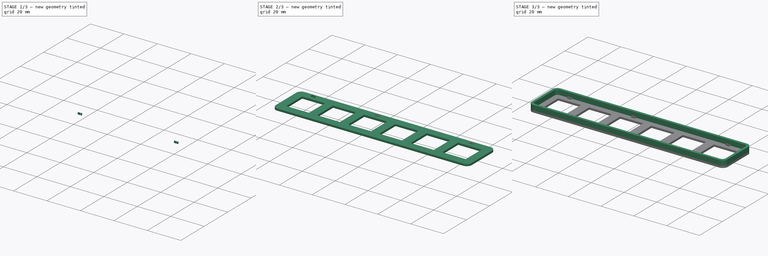
[diagram: build sequence overview — one tinted view per stage of 3, left to right]
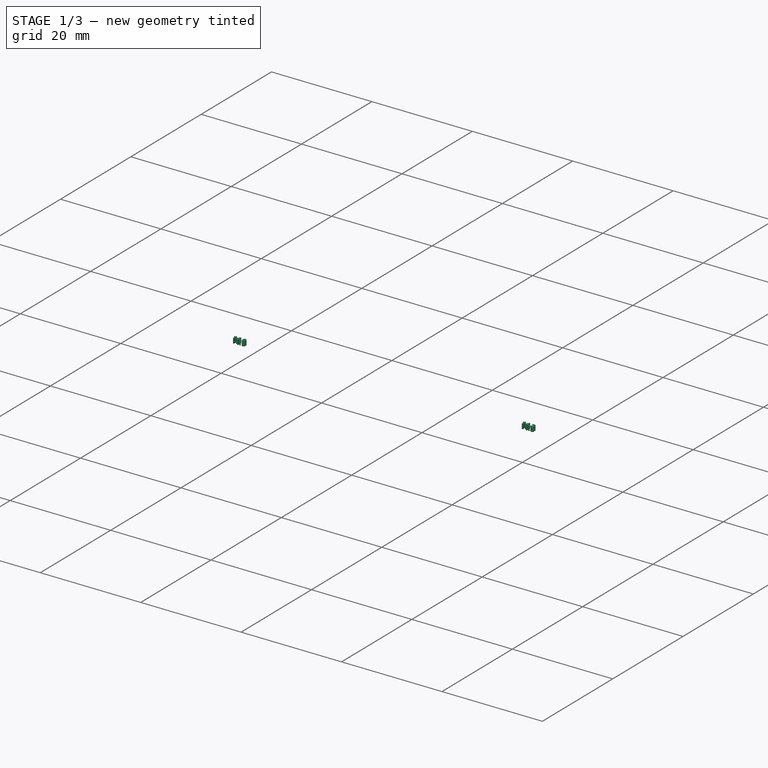
[diagram: stage 1 of 3 — iso view after this stage's code; geometry added in this stage tinted green]
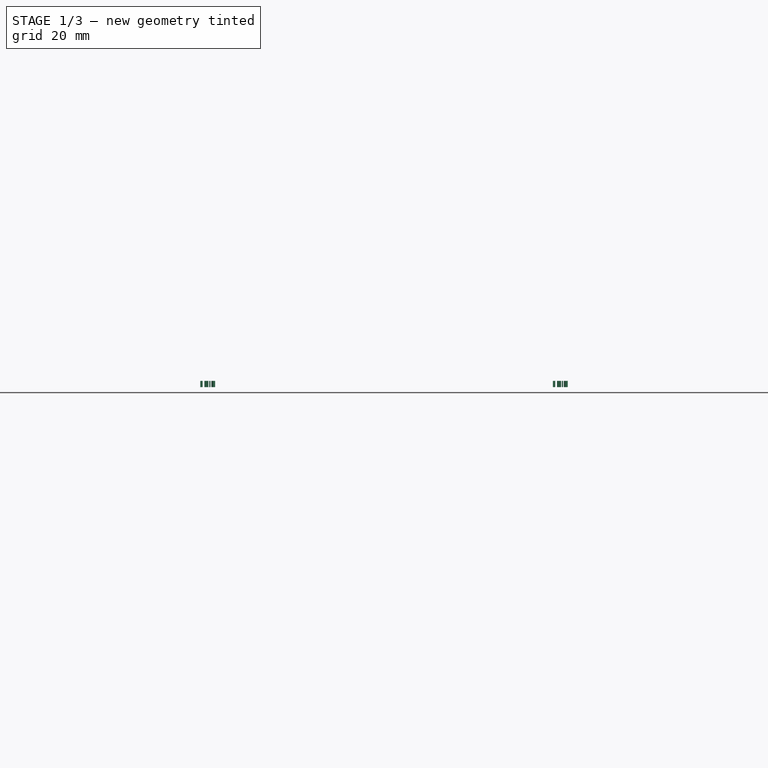
[diagram: stage 1 of 3 — front view after this stage's code; geometry added in this stage tinted green]
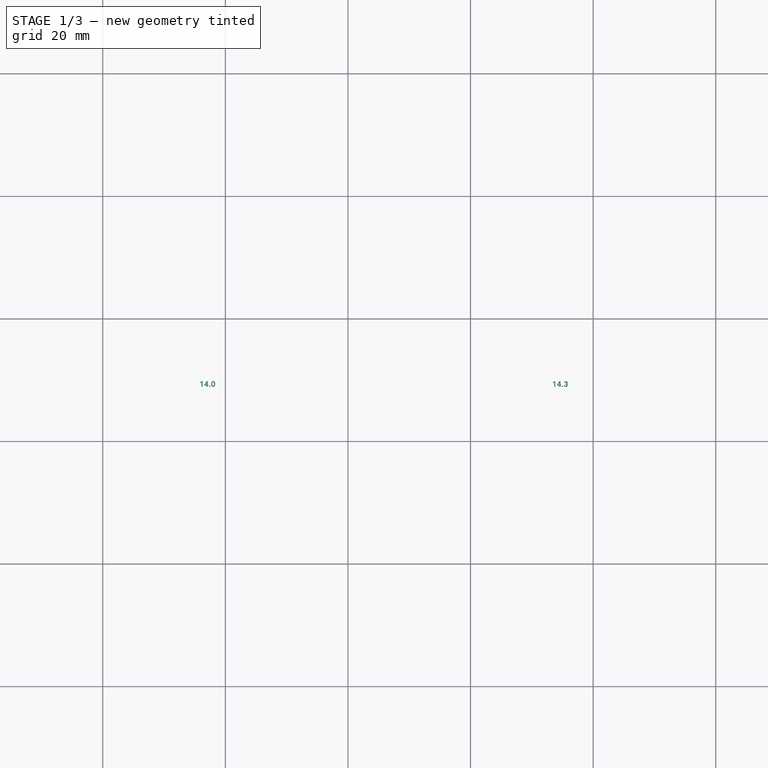
[diagram: stage 1 of 3 — top view after this stage's code; geometry added in this stage tinted green]
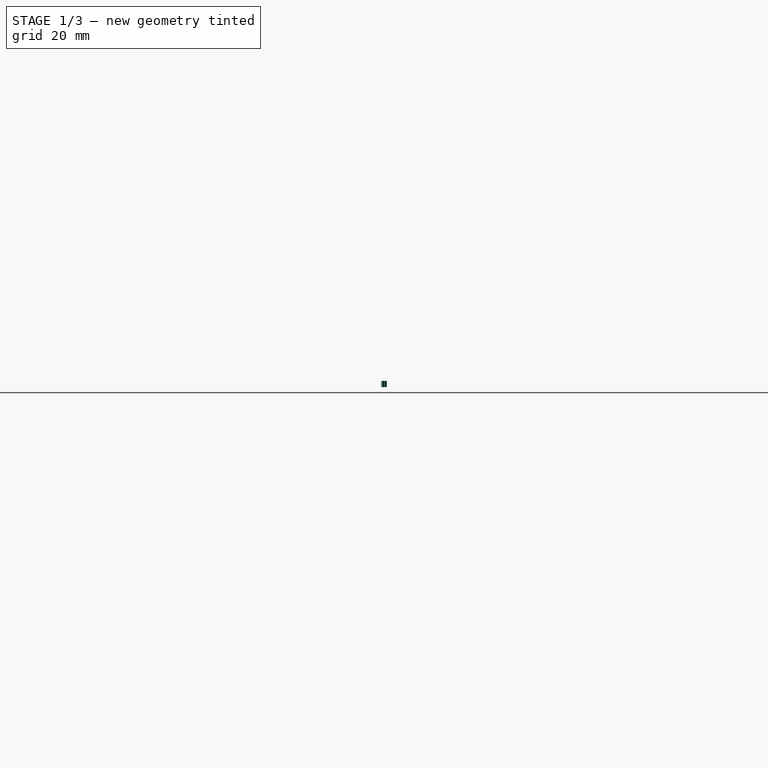
[diagram: stage 1 of 3 — right view after this stage's code; geometry added in this stage tinted green]
FCSTD DOCUMENT  (FreeCAD 0.19R)
Label: keyboard-topplate-tester
License: All rights reserved
LicenseURL: http://en.wikipedia.org/wiki/All_rights_reserved
objects: Part::Part2DObjectPython×3, Part::Extrusion×3, Sketcher::SketchObject×2, PartDesign::Pad×2, PartDesign::Body×1, Part::MultiFuse×1
note: 14 computed .brp shape members not serialized (recipe doc carries the construction recipe); baked Part::Feature solids carry a one-line shape summary decoded from their .brp

FEATURE [Part::Part2DObjectPython] ShapeString001  label="text14.3-sk"  # Draft 2D object (typed FeaturePython)
  FontFile = <userpath>/libraries/font/Roboto-Bold.ttf
  Placement = pos=(93.33,8.91,1.2) rot=(0,0,1;0rad)
  Size = 1
  String = 14.3
  Tracking = 0
FEATURE [Part::Extrusion] Extrude001  label="text14.3-pad"
  Base = -> ShapeString001
  Dir = (0,0,1)
  DirMode = 2
  FaceMakerClass = Part::FaceMakerBullseye
  LengthFwd = 1
  LengthRev = 0
  Solid = false
  Symmetric = false
FEATURE [Part::Part2DObjectPython] ShapeString002  label="text14.0-sk"  # Draft 2D object (typed FeaturePython)
  FontFile = <userpath>/libraries/font/Roboto-Bold.ttf
  Placement = pos=(35.79,8.92,1.2) rot=(0,0,1;0rad)
  Size = 1
  String = 14
  Tracking = 0
FEATURE [Part::Extrusion] Extrude002  label="text14.0-pad"
  Base = -> ShapeString002
  Dir = (0,0,1)
  DirMode = 2
  FaceMakerClass = Part::FaceMakerBullseye
  LengthFwd = 1
  LengthRev = 0
  Solid = false
  Symmetric = false
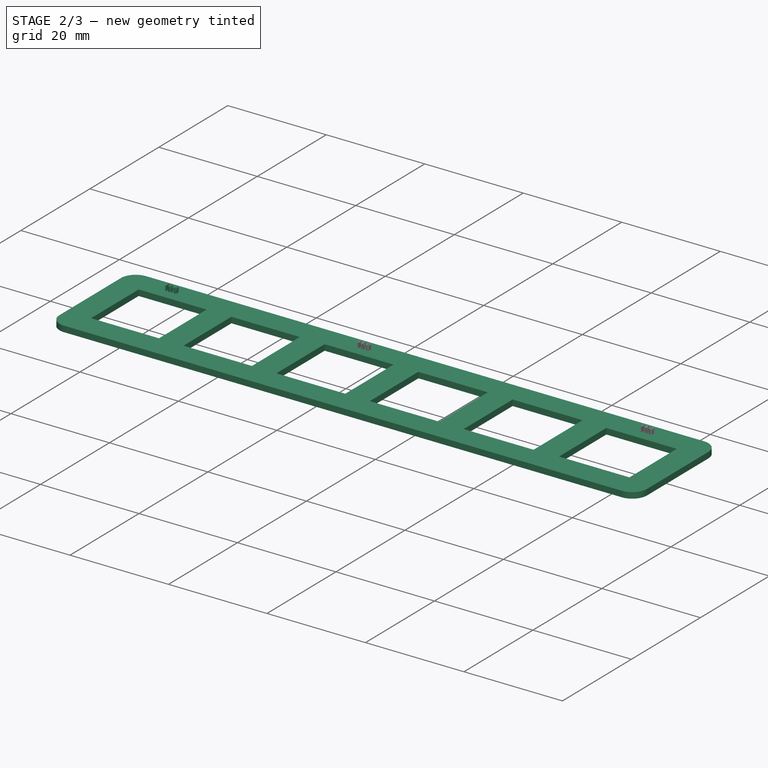
[diagram: stage 2 of 3 — iso view after this stage's code; geometry added in this stage tinted green]
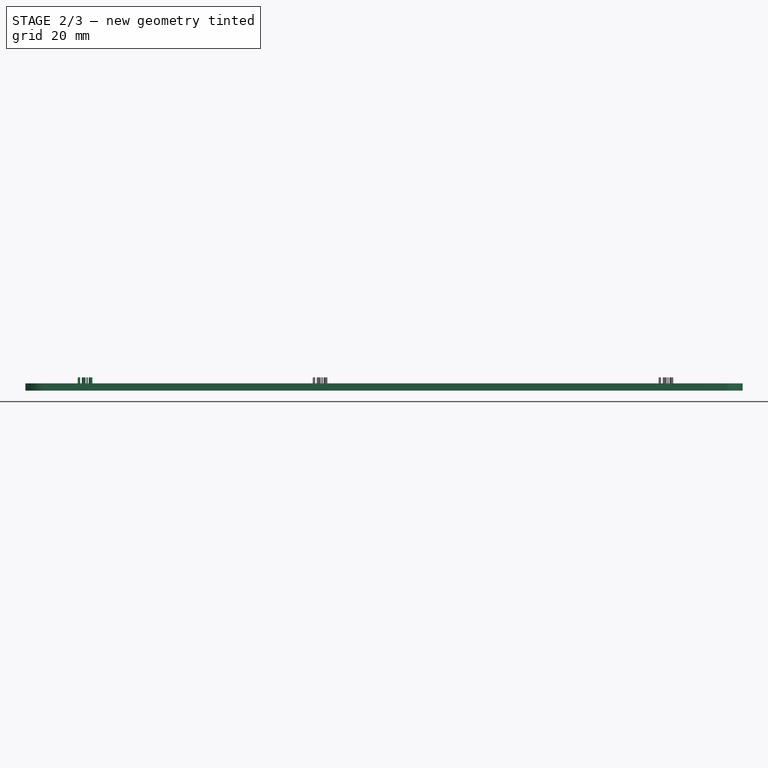
[diagram: stage 2 of 3 — front view after this stage's code; geometry added in this stage tinted green]
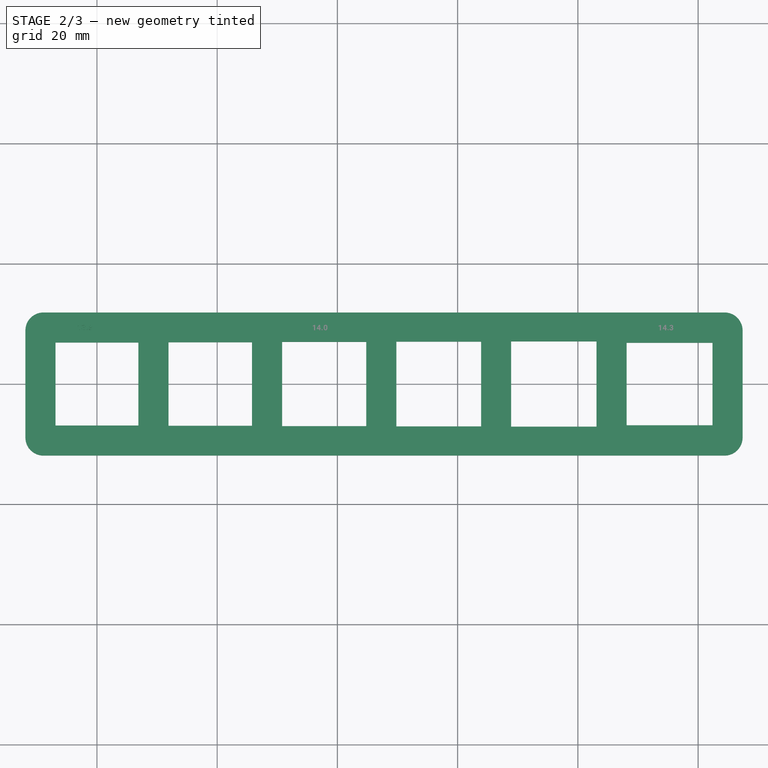
[diagram: stage 2 of 3 — top view after this stage's code; geometry added in this stage tinted green]
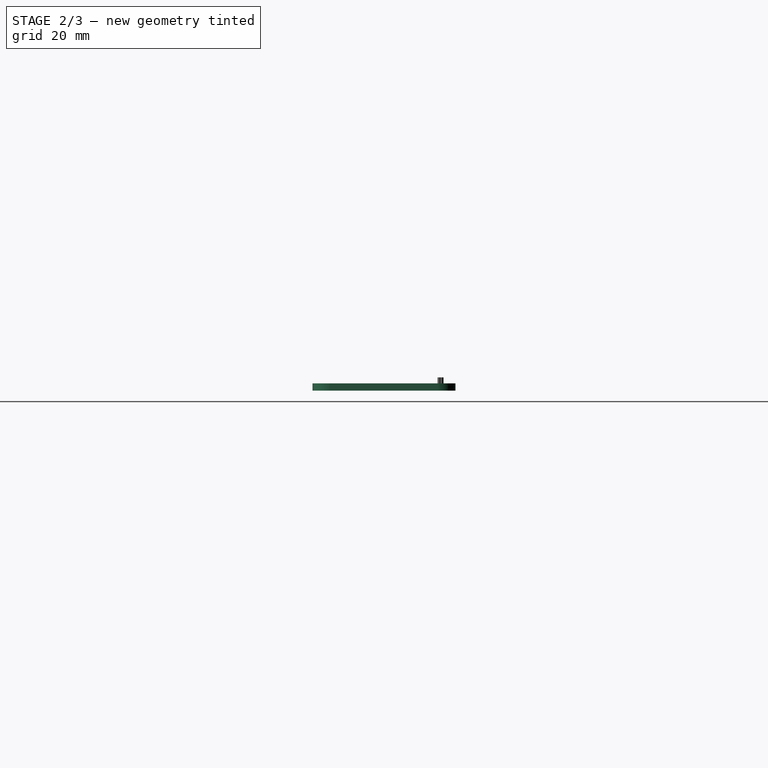
[diagram: stage 2 of 3 — right view after this stage's code; geometry added in this stage tinted green]
FEATURE [Sketcher::SketchObject] Sketch  label="top-sk"
  FullyConstrained = true
  MapMode = 5
  Support = -> [XY_Plane]
  sketch-geometry (32):
    g0: LineSegment StartX=-8.9 StartY=11.9 StartZ=0 EndX=104.4 EndY=11.9 EndZ=0
    g1: LineSegment StartX=107.4 StartY=8.9 StartZ=0 EndX=107.4 EndY=-8.9 EndZ=0
    g2: LineSegment StartX=104.4 StartY=-11.9 StartZ=0 EndX=-8.9 EndY=-11.9 EndZ=0
    g3: LineSegment StartX=-11.9 StartY=-8.9 StartZ=0 EndX=-11.9 EndY=8.9 EndZ=0
    g4: LineSegment StartX=-6.9 StartY=6.9 StartZ=0 EndX=6.9 EndY=6.9 EndZ=0
    g5: LineSegment StartX=6.9 StartY=6.9 StartZ=0 EndX=6.9 EndY=-6.9 EndZ=0
    g6: LineSegment StartX=6.9 StartY=-6.9 StartZ=0 EndX=-6.9 EndY=-6.9 EndZ=0
    g7: LineSegment StartX=-6.9 StartY=-6.9 StartZ=0 EndX=-6.9 EndY=6.9 EndZ=0
    g8: LineSegment StartX=68.9 StartY=7.1 StartZ=0 EndX=83.1 EndY=7.1 EndZ=0
    g9: LineSegment StartX=83.1 StartY=7.1 StartZ=0 EndX=83.1 EndY=-7.1 EndZ=0
    g10: LineSegment StartX=83.1 StartY=-7.1 StartZ=0 EndX=68.9 EndY=-7.1 EndZ=0
    g11: LineSegment StartX=68.9 StartY=-7.1 StartZ=0 EndX=68.9 EndY=7.1 EndZ=0
    g12: LineSegment StartX=11.9 StartY=6.95 StartZ=0 EndX=25.8 EndY=6.95 EndZ=0
    g13: LineSegment StartX=25.8 StartY=6.95 StartZ=0 EndX=25.8 EndY=-6.95 EndZ=0
    g14: LineSegment StartX=25.8 StartY=-6.95 StartZ=0 EndX=11.9 EndY=-6.95 EndZ=0
    g15: LineSegment StartX=11.9 StartY=-6.95 StartZ=0 EndX=11.9 EndY=6.95 EndZ=0
    g16: LineSegment StartX=30.8 StartY=7 StartZ=0 EndX=44.8 EndY=7 EndZ=0
    g17: LineSegment StartX=44.8 StartY=7 StartZ=0 EndX=44.8 EndY=-7 EndZ=0
    g18: LineSegment StartX=44.8 StartY=-7 StartZ=0 EndX=30.8 EndY=-7 EndZ=0
    g19: LineSegment StartX=30.8 StartY=-7 StartZ=0 EndX=30.8 EndY=7 EndZ=0
    g20: LineSegment StartX=49.8 StartY=7.05 StartZ=0 EndX=63.9 EndY=7.05 EndZ=0
    g21: LineSegment StartX=63.9 StartY=7.05 StartZ=0 EndX=63.9 EndY=-7.05 EndZ=0
    g22: LineSegment StartX=63.9 StartY=-7.05 StartZ=0 EndX=49.8 EndY=-7.05 EndZ=0
    g23: LineSegment StartX=49.8 StartY=-7.05 StartZ=0 EndX=49.8 EndY=7.05 EndZ=0
    g24: ArcOfCircle CenterX=-8.9 CenterY=-8.9 CenterZ=0 NormalX=0 NormalY=0 NormalZ=1 AngleXU=0 Radius=3 StartAngle=3.14159 EndAngle=4.71239
    g25: ArcOfCircle CenterX=-8.9 CenterY=8.9 CenterZ=0 NormalX=0 NormalY=0 NormalZ=1 AngleXU=0 Radius=3 StartAngle=1.5708 EndAngle=3.14159
    g26: ArcOfCircle CenterX=104.4 CenterY=-8.9 CenterZ=0 NormalX=0 NormalY=0 NormalZ=1 AngleXU=0 Radius=3 StartAngle=4.71239 EndAngle=6.28319
    g27: ArcOfCircle CenterX=104.4 CenterY=8.9 CenterZ=0 NormalX=0 NormalY=0 NormalZ=1 AngleXU=0 Radius=3 StartAngle=0 EndAngle=1.5708
    g28: LineSegment StartX=88.1 StartY=6.86 StartZ=0 EndX=102.4 EndY=6.86 EndZ=0
    g29: LineSegment StartX=102.4 StartY=6.86 StartZ=0 EndX=102.4 EndY=-6.86 EndZ=0
    g30: LineSegment StartX=102.4 StartY=-6.86 StartZ=0 EndX=88.1 EndY=-6.86 EndZ=0
    g31: LineSegment StartX=88.1 StartY=-6.86 StartZ=0 EndX=88.1 EndY=6.86 EndZ=0
  constraints (85):
    c: Horizontal(g0)
    c: Horizontal(g2)
    c: Vertical(g1)
    c: Coincident(g4,g5)
    c: Coincident(g5,g6)
    c: Coincident(g6,g7)
    c: Coincident(g7,g4)
    c: Horizontal(g4)
    c: Vertical(g7)
    c: DistanceX(g4,g4) = 13.8
    c: DistanceY(g5,g5) = 13.8
    c: Symmetric(g5,g4,g-1)
    c: Coincident(g8,g9)
    c: Coincident(g9,g10)
    c: Coincident(g10,g11)
    c: Coincident(g11,g8)
    c: Horizontal(g8)
    c: Horizontal(g10)
    c: Vertical(g11)
    c: Coincident(g12,g13)
    c: Coincident(g13,g14)
    c: Coincident(g14,g15)
    c: Coincident(g15,g12)
    c: Horizontal(g12)
    c: Horizontal(g14)
    c: Vertical(g15)
    c: Coincident(g16,g17)
    c: Coincident(g17,g18)
    c: Coincident(g18,g19)
    c: Coincident(g19,g16)
    c: Horizontal(g16)
    c: Horizontal(g18)
    c: Vertical(g19)
    c: Coincident(g20,g21)
    c: Coincident(g21,g22)
    c: Coincident(g22,g23)
    c: Coincident(g23,g20)
    c: Horizontal(g20)
    c: Horizontal(g22)
    c: Vertical(g23)
    c: Symmetric(g9,g8,g-1)
    c: Symmetric(g13,g12,g-1)
    c: Symmetric(g17,g16,g-1)
    c: Symmetric(g21,g20,g-1)
    c: DistanceX(g14,g14) = 13.9
    c: DistanceY(g15,g15) = 13.9
    c: DistanceY(g19,g19) = 14
    c: DistanceX(g18,g18) = 14
    c: DistanceX(g20,g20) = 14.1
    c: DistanceY(g23,g23) = 14.1
    c: DistanceX(g13,g18) = 5
    c: DistanceX(g17,g22) = 5
    c: Symmetric(g6,g5,g-2)
    c: DistanceY(g11,g11) = 14.2
    c: DistanceX(g10,g10) = 14.2
    c: DistanceX(g21,g10) = 5
    c: DistanceX(g5,g14) = 5
    c: Tangent(g2,g24) = 1.5708
    c: Tangent(g3,g24) = 1.5708
    c: Tangent(g0,g25) = 1.5708
    c: Tangent(g3,g25) = 1.5708
    c: Tangent(g1,g26) = 1.5708
    c: Tangent(g2,g26) = 1.5708
    c: Tangent(g0,g27) = 1.5708
    c: Tangent(g1,g27) = 1.5708
    c: DistanceX(g0,g1) = 3
    c: DistanceX(g2,g1) = 3
    c: DistanceX(g3,g6) = 5
    c: Vertical(g3)
    c: DistanceX(g3,g0) = 3
    c: DistanceX(g3,g2) = 3
    c: DistanceY(g2,g6) = 5
    c: DistanceY(g4,g0) = 5
    c: Coincident(g28,g29)
    c: Coincident(g29,g30)
    c: Coincident(g30,g31)
    c: Coincident(g31,g28)
    c: Horizontal(g28)
    c: Horizontal(g30)
    c: Vertical(g31)
    c: Symmetric(g29,g28,g-1)
    c: DistanceX(g9,g30) = 5
    c: DistanceX(g30,g30) = 14.3
    c: DistanceY(g31,g31) = 13.72
    c: DistanceX(g29,g1) = 5
FEATURE [PartDesign::Pad] Pad  label="top-pad"
  Direction = (1,1,1)
  Length = 1.2
  Length2 = 100
  Profile = -> Sketch
  Type = 0
FEATURE [PartDesign::Body] Body  label="main"
  Group = -> [Sketch,Pad,Sketch001,Pad001]
  Origin = -> Origin
  Tip = -> Pad001
FEATURE [Part::Part2DObjectPython] ShapeString  label="text-13.8-sketch"  # Draft 2D object (typed FeaturePython)
  FontFile = <userpath>/libraries/font/Roboto-Bold.ttf
  Placement = pos=(-3.3,9,1.2) rot=(0,0,1;0rad)
  Size = 1
  String = 13.8
  Tracking = 0
FEATURE [Part::Extrusion] Extrude  label="text13.8-pad"
  Base = -> ShapeString
  Dir = (0,0,1)
  DirMode = 2
  FaceMakerClass = Part::FaceMakerBullseye
  LengthFwd = 1
  LengthRev = 0
  Solid = false
  Symmetric = false
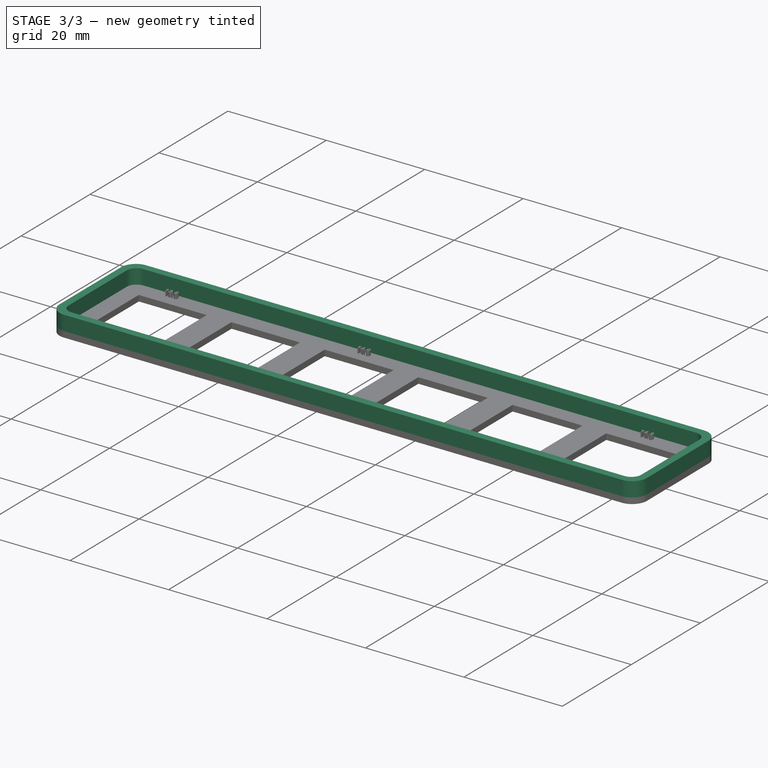
[diagram: stage 3 of 3 — iso view after this stage's code; geometry added in this stage tinted green]
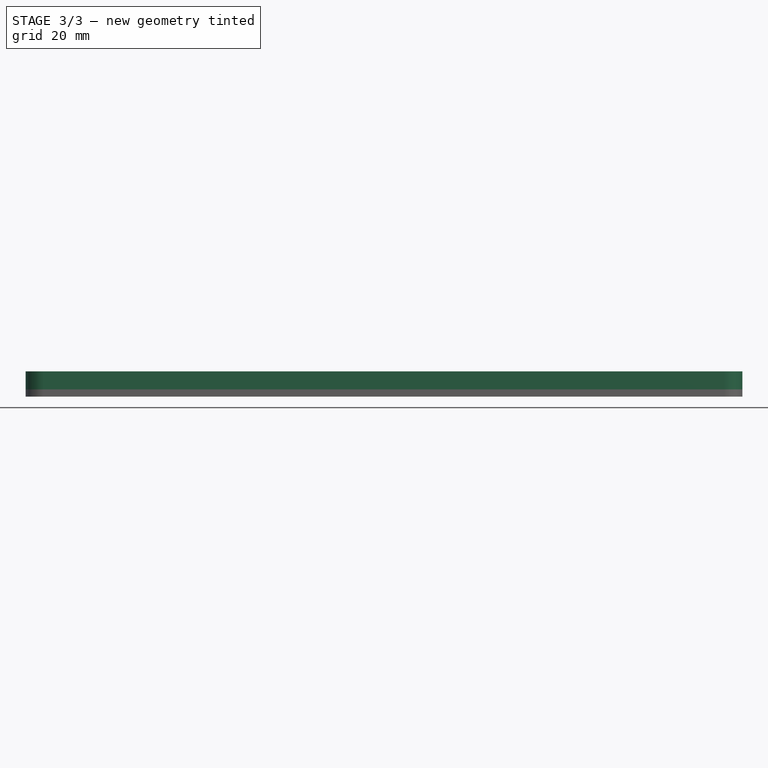
[diagram: stage 3 of 3 — front view after this stage's code; geometry added in this stage tinted green]
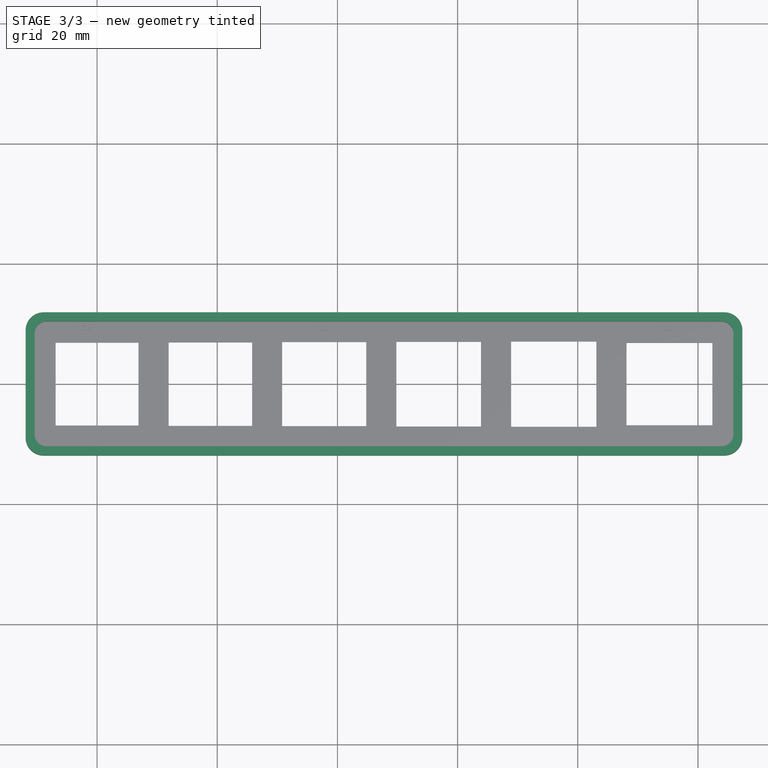
[diagram: stage 3 of 3 — top view after this stage's code; geometry added in this stage tinted green]
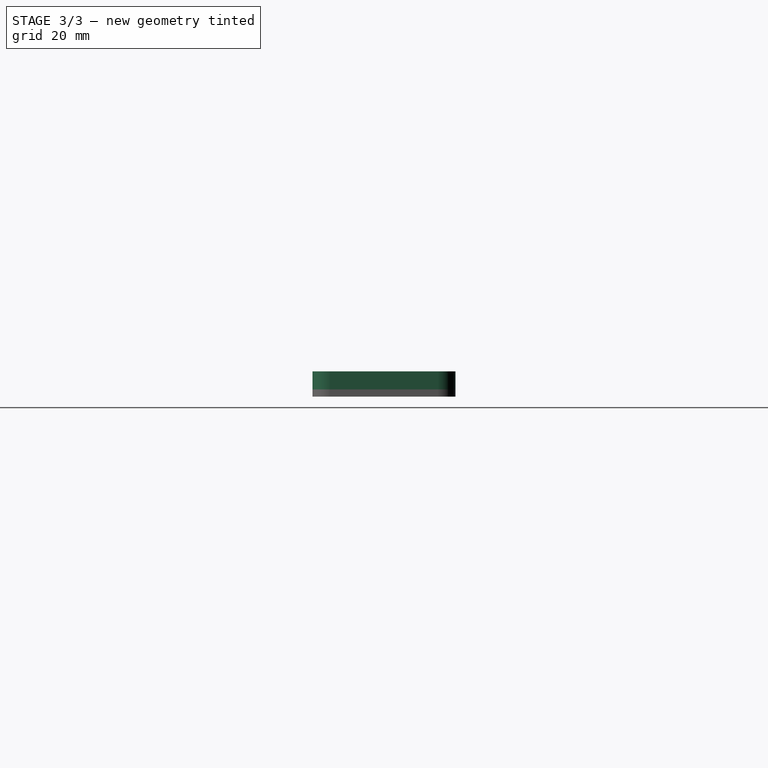
[diagram: stage 3 of 3 — right view after this stage's code; geometry added in this stage tinted green]
FEATURE [Sketcher::SketchObject] Sketch001  label="power-sk"
  ExternalGeometry = -> [Pad]
  FullyConstrained = true
  MapMode = 5
  Placement = pos=(0,0,1.2) rot=(0,0,1;0rad)
  Support = -> [Pad]
  sketch-geometry (16):
    g0: LineSegment StartX=-8.9 StartY=11.9 StartZ=0 EndX=104.4 EndY=11.9 EndZ=0
    g1: LineSegment StartX=107.4 StartY=8.9 StartZ=0 EndX=107.4 EndY=-8.9 EndZ=0
    g2: LineSegment StartX=104.4 StartY=-11.9 StartZ=0 EndX=-8.9 EndY=-11.9 EndZ=0
    g3: LineSegment StartX=-11.9 StartY=-8.9 StartZ=0 EndX=-11.9 EndY=8.9 EndZ=0
    g4: ArcOfCircle CenterX=104.4 CenterY=8.9 CenterZ=0 NormalX=0 NormalY=0 NormalZ=1 AngleXU=0 Radius=3 StartAngle=-2.7e-15 EndAngle=1.5708
    g5: ArcOfCircle CenterX=104.4 CenterY=-8.9 CenterZ=0 NormalX=0 NormalY=0 NormalZ=1 AngleXU=0 Radius=3 StartAngle=4.71239 EndAngle=6.28319
    g6: ArcOfCircle CenterX=-8.9 CenterY=-8.9 CenterZ=0 NormalX=0 NormalY=0 NormalZ=1 AngleXU=0 Radius=3 StartAngle=3.14159 EndAngle=4.71239
    g7: ArcOfCircle CenterX=-8.9 CenterY=8.9 CenterZ=0 NormalX=0 NormalY=0 NormalZ=1 AngleXU=0 Radius=3 StartAngle=1.5708 EndAngle=3.14159
    g8: LineSegment StartX=-8.4 StartY=10.4 StartZ=0 EndX=103.9 EndY=10.4 EndZ=0
    g9: LineSegment StartX=105.9 StartY=8.4 StartZ=0 EndX=105.9 EndY=-8.4 EndZ=0
    g10: LineSegment StartX=103.9 StartY=-10.4 StartZ=0 EndX=-8.4 EndY=-10.4 EndZ=0
    g11: LineSegment StartX=-10.4 StartY=-8.4 StartZ=0 EndX=-10.4 EndY=8.4 EndZ=0
    g12: ArcOfCircle CenterX=103.9 CenterY=8.4 CenterZ=0 NormalX=0 NormalY=0 NormalZ=1 AngleXU=0 Radius=2 StartAngle=2e-16 EndAngle=1.5708
    g13: ArcOfCircle CenterX=103.9 CenterY=-8.4 CenterZ=0 NormalX=0 NormalY=0 NormalZ=1 AngleXU=0 Radius=2 StartAngle=4.71239 EndAngle=6.28319
    g14: ArcOfCircle CenterX=-8.4 CenterY=8.4 CenterZ=0 NormalX=0 NormalY=0 NormalZ=1 AngleXU=0 Radius=2 StartAngle=1.5708 EndAngle=3.14159
    g15: ArcOfCircle CenterX=-8.4 CenterY=-8.4 CenterZ=0 NormalX=0 NormalY=0 NormalZ=1 AngleXU=0 Radius=2 StartAngle=3.14159 EndAngle=4.71239
  constraints (35):
    c: Horizontal(g0)
    c: Tangent(g0,g4) = 1.5708
    c: Tangent(g1,g4) = 1.5708
    c: Tangent(g1,g5) = 1.5708
    c: Tangent(g2,g5) = 1.5708
    c: Tangent(g2,g6) = 1.5708
    c: Tangent(g3,g6) = 1.5708
    c: Tangent(g0,g7) = 1.5708
    c: Tangent(g3,g7) = 1.5708
    c: Coincident(g-10,g0)
    c: Coincident(g3,g-10)
    c: Coincident(g2,g-8)
    c: Coincident(g2,g-7)
    c: Coincident(g1,g-4)
    c: Coincident(g-5,g1)
    c: Horizontal(g8)
    c: Horizontal(g10)
    c: Vertical(g9)
    c: Vertical(g11)
    c: Tangent(g8,g12) = 1.5708
    c: Tangent(g9,g12) = 1.5708
    c: Tangent(g9,g13) = 1.5708
    c: Tangent(g10,g13) = 1.5708
    c: Tangent(g8,g14) = 1.5708
    c: Tangent(g11,g14) = 1.5708
    c: Tangent(g10,g15) = 1.5708
    c: Tangent(g11,g15) = 1.5708
    c: DistanceY(g8,g0) = 1.5
    c: DistanceX(g3,g11) = 1.5
    c: DistanceX(g11,g14) = 2
    c: DistanceY(g2,g10) = 1.5
    c: DistanceX(g11,g10) = 2
    c: DistanceX(g9,g1) = 1.5
    c: DistanceX(g8,g9) = 2
    c: DistanceX(g10,g9) = 2
FEATURE [PartDesign::Pad] Pad001  label="power-pad"
  BaseFeature = -> Pad
  Direction = (1,1,1)
  Length = 3
  Length2 = 100
  Profile = -> Sketch001
  Type = 0
FEATURE [Part::MultiFuse] Fusion
  Shapes = -> [Body,Extrude,Extrude001,Extrude002]
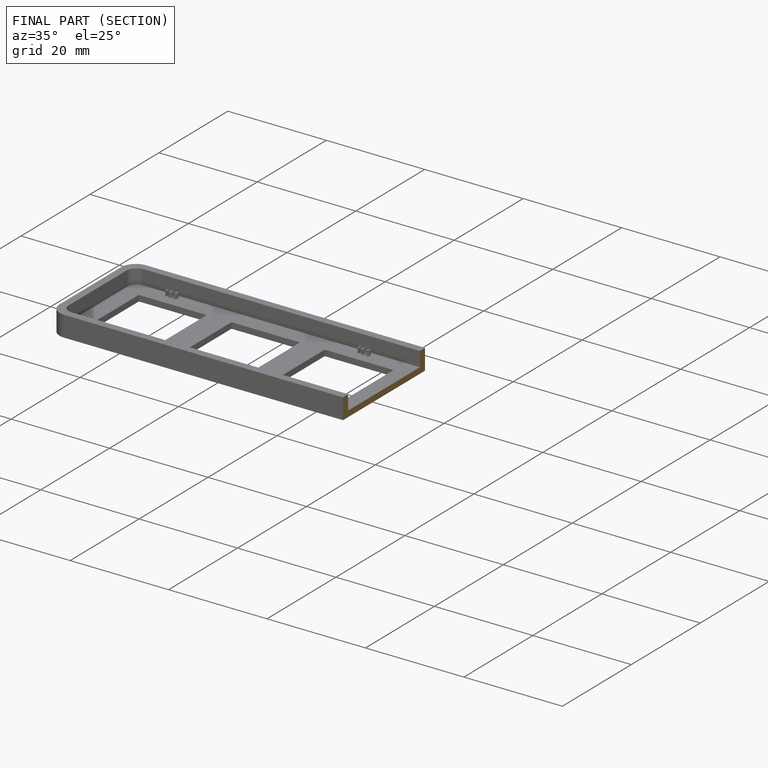
[diagram: finished part — half-section view (interior)]
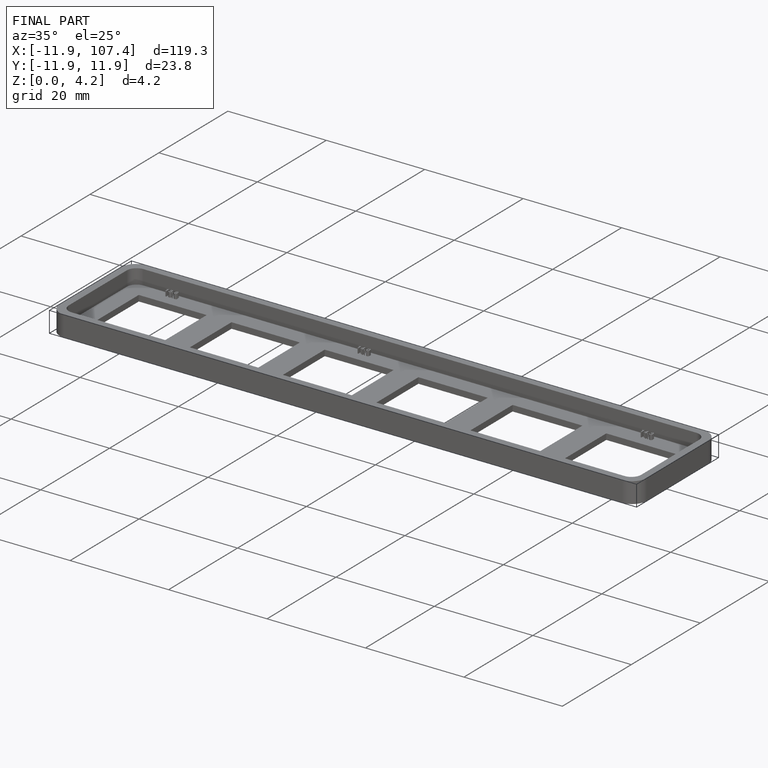
[diagram: finished part — iso view with bounding-box wireframe]
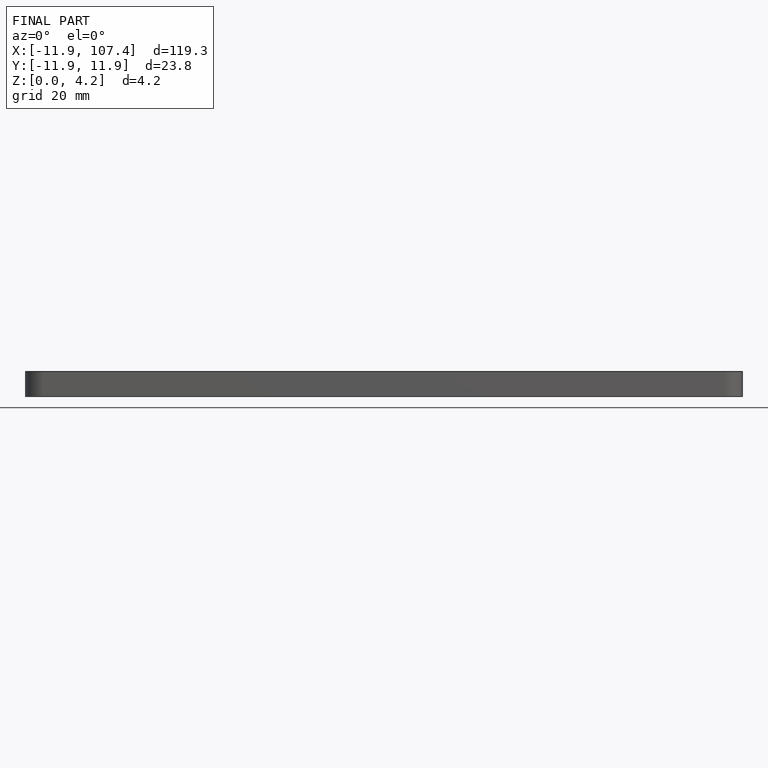
[diagram: finished part — front view with bounding-box wireframe]
